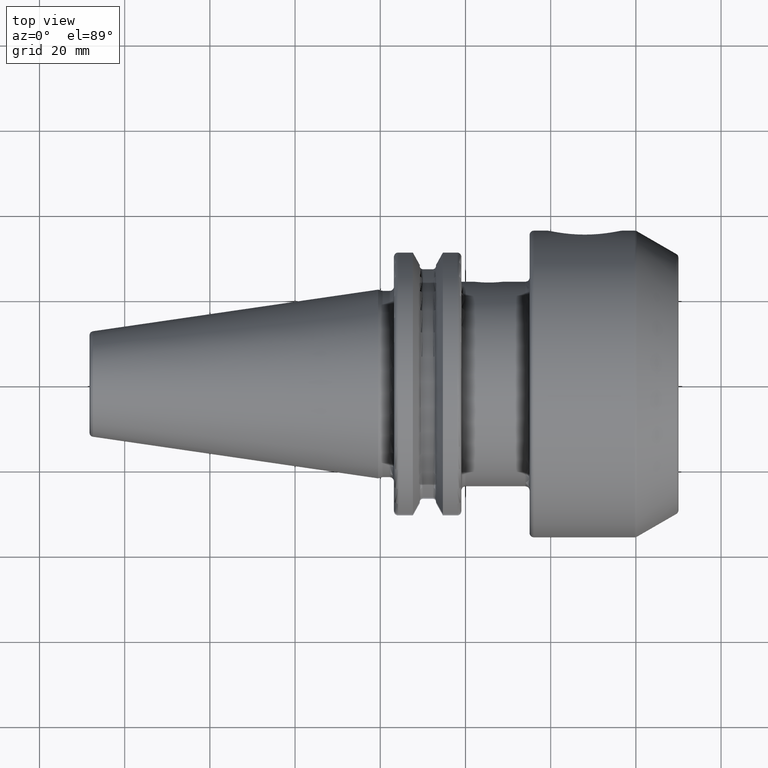
[diagram: clean part render]
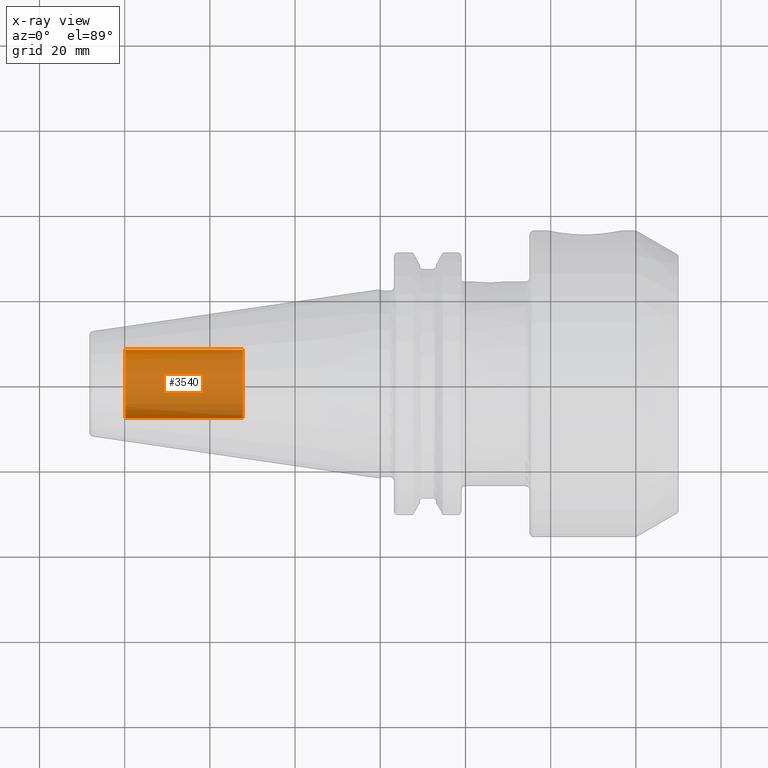
[diagram: x-ray — body ghosted, one internal face saturated and labeled with its STEP entity id]
A machine part, top view, then the same camera in x-ray: the body is ghosted and one INTERNAL B-rep face — a face not visible from any outside direction — is saturated and labeled: STEP entity #3540.
In plain terms, the highlighted cylindrical surface (edge-blend (fillet) strip) has radius 8.0028 mm, axis along (1, 0, 0).
Its self-contained STEP definition (entity closure, byte-faithful):
#3475=CARTESIAN_POINT('',(-5.98E1,0.E0,0.E0));
#3476=DIRECTION('',(-1.E0,0.E0,0.E0));
#3477=DIRECTION('',(0.E0,1.E0,0.E0));
#3478=AXIS2_PLACEMENT_3D('',#3475,#3476,#3477);
#3480=DIRECTION('',(1.E0,0.E0,0.E0));
#3481=VECTOR('',#3480,2.755E1);
#3482=CARTESIAN_POINT('',(-5.98E1,-8.00275E0,0.E0));
#3483=LINE('',#3482,#3481);
#3489=DIRECTION('',(1.E0,0.E0,0.E0));
#3490=VECTOR('',#3489,2.755E1);
#3491=CARTESIAN_POINT('',(-5.98E1,8.00275E0,0.E0));
#3492=LINE('',#3491,#3490);
#3498=CARTESIAN_POINT('',(-3.225E1,0.E0,0.E0));
#3499=DIRECTION('',(1.E0,0.E0,0.E0));
#3500=DIRECTION('',(0.E0,-1.E0,0.E0));
#3501=AXIS2_PLACEMENT_3D('',#3498,#3499,#3500);
#3513=CARTESIAN_POINT('',(-5.98E1,8.00275E0,0.E0));
#3514=CARTESIAN_POINT('',(-5.98E1,-8.00275E0,0.E0));
#3515=VERTEX_POINT('',#3513);
#3516=VERTEX_POINT('',#3514);
#3517=CARTESIAN_POINT('',(-3.225E1,8.00275E0,0.E0));
#3518=CARTESIAN_POINT('',(-3.225E1,-8.00275E0,0.E0));
#3519=VERTEX_POINT('',#3517);
#3520=VERTEX_POINT('',#3518);
#3525=CARTESIAN_POINT('',(-5.98E1,0.E0,0.E0));
#3526=DIRECTION('',(1.E0,0.E0,0.E0));
#3527=DIRECTION('',(0.E0,1.E0,0.E0));
#3528=AXIS2_PLACEMENT_3D('',#3525,#3526,#3527);
#3529=CYLINDRICAL_SURFACE('',#3528,8.00275E0);
#3531=ORIENTED_EDGE('',*,*,#3530,.T.);
#3533=ORIENTED_EDGE('',*,*,#3532,.T.);
#3535=ORIENTED_EDGE('',*,*,#3534,.T.);
#3537=ORIENTED_EDGE('',*,*,#3536,.F.);
#3538=EDGE_LOOP('',(#3531,#3533,#3535,#3537));
#3539=FACE_OUTER_BOUND('',#3538,.F.);
#3540=ADVANCED_FACE('',(#3539),#3529,.T.);
#3479=CIRCLE('',#3478,8.00275E0);
#3502=CIRCLE('',#3501,8.00275E0);
#3530=EDGE_CURVE('',#3515,#3516,#3479,.T.);
#3532=EDGE_CURVE('',#3516,#3520,#3483,.T.);
#3534=EDGE_CURVE('',#3520,#3519,#3502,.T.);
#3536=EDGE_CURVE('',#3515,#3519,#3492,.T.);